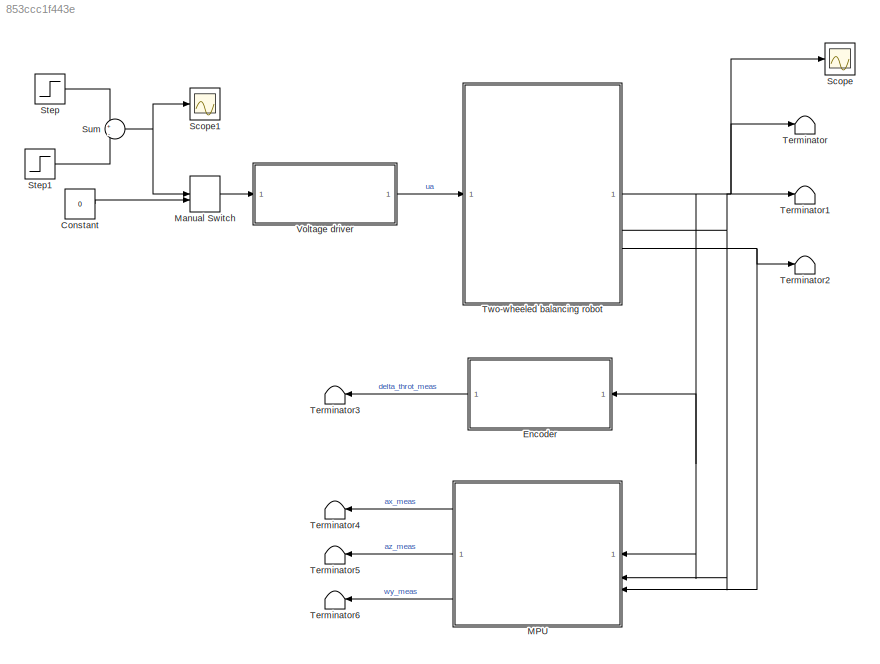
MODEL slx_853ccc1f443e
KIND model
CONFIG AbsTol = auto
CONFIG EnableMultiTasking = off
CONFIG FixedStep = auto
CONFIG MaxStep = auto
CONFIG MinStep = auto
CONFIG RelTol = 1e-3
CONFIG SampleTimeConstraint = Unconstrained
CONFIG SolverName = VariableStepAuto
CONFIG StartTime = 0.0
CONFIG StopTime = 10.0
BLOCK [Constant] Constant
  Value = 0
BLOCK [SubSystem] Encoder
  ReferencedSubsystem = Encoder_balrob
BLOCK [SubSystem] MPU
  ReferencedSubsystem = MotionProcessingUnit
BLOCK [ManualSwitch] Manual Switch
BLOCK [Scope] Scope
  Floating = off
  NumInputPorts = 1
  ScopeSpecificationString = Simulink.scopes.TimeScopeBlockCfg('CurrentConfiguration', extmgr.ConfigurationSet(extmgr.Configuration('Core','General UI',true),extmgr.Configuration('Core','Source UI',true),extmgr.Configuration('Sources','WiredSimulink',true),extmgr.Configuration('Visuals','Time Domain',true,'SerializedDisplays',{struct('MinYLimReal','-340.41263','MaxYLimReal','38.37219','YLabelReal','','MinYLimMag',' 0.00000','...<+1511ch>
BLOCK [Scope] Scope1
  Floating = off
  NumInputPorts = 1
  ScopeSpecificationString = Simulink.scopes.TimeScopeBlockCfg('CurrentConfiguration', extmgr.ConfigurationSet(extmgr.Configuration('Core','General UI',true),extmgr.Configuration('Core','Source UI',true),extmgr.Configuration('Sources','WiredSimulink',true,'DataLoggingVariableName','ScopeData1'),extmgr.Configuration('Visuals','Time Domain',true,'SerializedDisplays',{struct('MinYLimReal','-0.625','MaxYLimReal','5.625','YLabelRe...<+1439ch>
BLOCK [Step] Step
  After = 5
  SampleTime = 0
BLOCK [Step] Step1
  After = 5
  SampleTime = 0
  Time = 1.1
BLOCK [Sum] Sum
  Inputs = +|-
BLOCK [Terminator] Terminator
BLOCK [Terminator] Terminator1
BLOCK [Terminator] Terminator2
BLOCK [Terminator] Terminator3
BLOCK [Terminator] Terminator4
BLOCK [Terminator] Terminator5
BLOCK [Terminator] Terminator6
BLOCK [SubSystem] Two-wheeled balancing robot
  ReferencedSubsystem = ElectromechanicalDynamics
BLOCK [SubSystem] Voltage driver
  ReferencedSubsystem = VoltageDriver_balrob
LINE Constant:1 -> Manual Switch:2
LINE Encoder:1 -> Terminator3:1
LINE MPU:1 -> Terminator4:1
LINE MPU:2 -> Terminator5:1
LINE MPU:3 -> Terminator6:1
LINE Manual Switch:1 -> Voltage driver:1
LINE Step1:1 -> Sum:2
LINE Step:1 -> Sum:1
NET Sum:1 -> Manual Switch:1, Scope1:1
NET Two-wheeled balancing robot:1 -> Encoder:1, MPU:1, Scope:1, Terminator:1
NET Two-wheeled balancing robot:2 -> MPU:2, Terminator1:1
NET Two-wheeled balancing robot:3 -> MPU:3, Terminator2:1
LINE Voltage driver:1 -> Two-wheeled balancing robot:1
note: NET lines group one-source signal fan-out (src -> all destinations, sorted); 1:1 wires keep LINE
